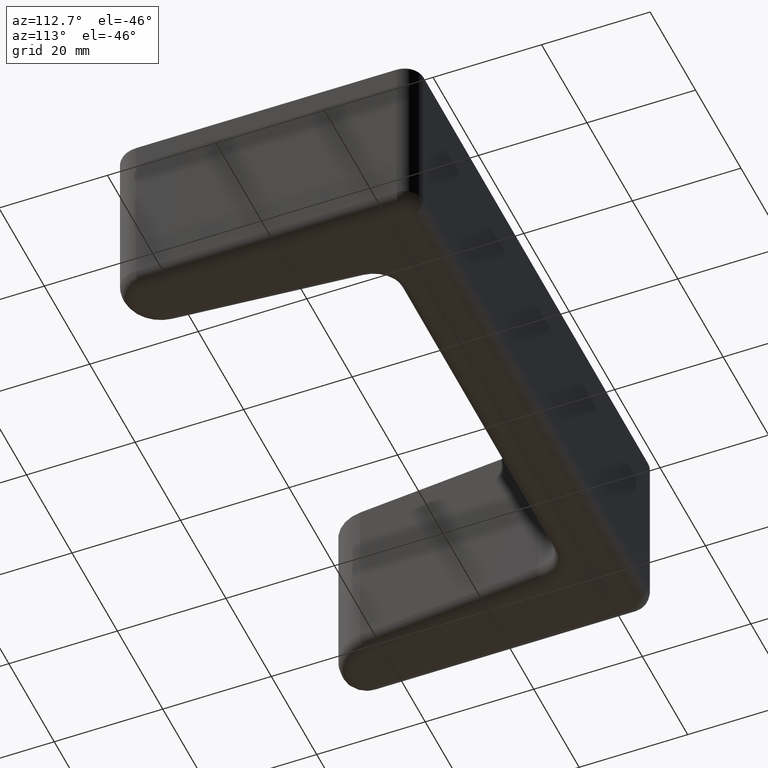
[diagram: clean part render]
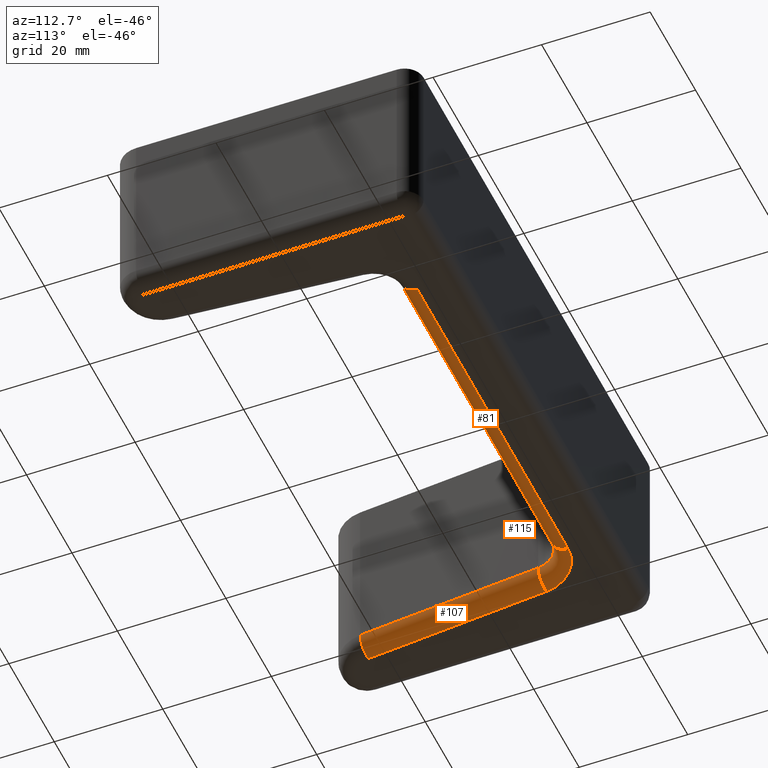
[diagram: same view with one multi-face feature highlighted, each face labeled with its STEP entity id]
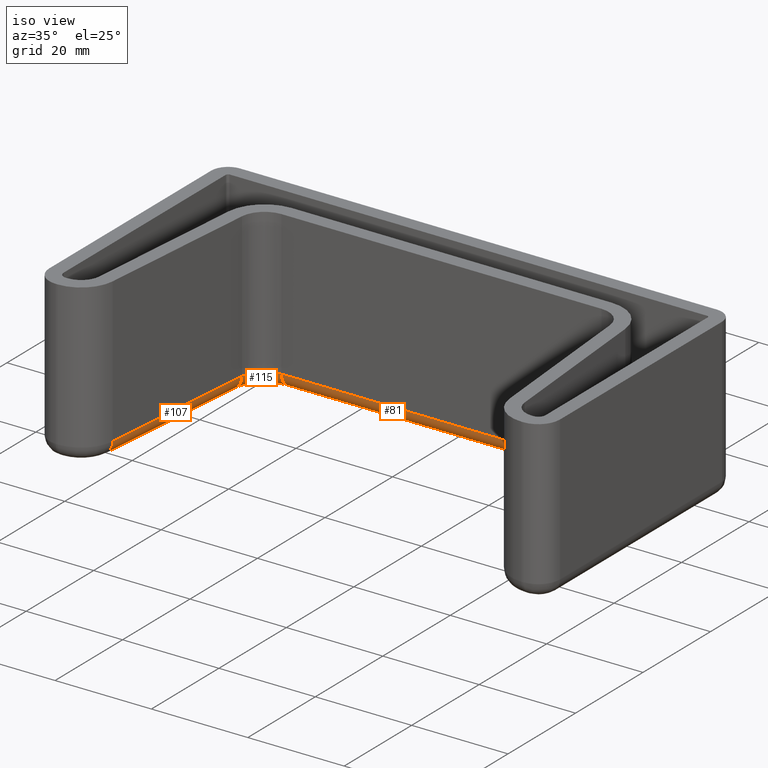
[diagram: same view with one multi-face feature highlighted, each face labeled with its STEP entity id]
A machine part, auxiliary view. The highlighted faces form ONE feature: a constant-radius fillet chain: 3 tangent blend faces with common blend radius 3 mm. The faces share edges in the B-rep.
A second angle (iso view) of the same feature is appended — it is thin or edge-on in the first view.
Their STEP definitions:
[1] entity #81 (Cylinder):
#81 = ADVANCED_FACE( '', ( #140 ), #141, .T. );
#140 = FACE_OUTER_BOUND( '', #243, .T. );
#141 = CYLINDRICAL_SURFACE( '', #244, 3.00000000000000 );
#243 = EDGE_LOOP( '', ( #463, #464, #465, #466 ) );
#244 = AXIS2_PLACEMENT_3D( '', #467, #468, #469 );
#463 = ORIENTED_EDGE( '', *, *, #835, .T. );
#464 = ORIENTED_EDGE( '', *, *, #833, .T. );
#465 = ORIENTED_EDGE( '', *, *, #836, .F. );
#466 = ORIENTED_EDGE( '', *, *, #837, .T. );
#467 = CARTESIAN_POINT( '', ( 12.5000000000000, -2.50000000000002, -29.9998116069360 ) );
#468 = DIRECTION( '', ( 1.00000000000000, -1.50710429073922E-015, -9.56537108098822E-017 ) );
#469 = DIRECTION( '', ( -1.13332105149637E-015, -0.707106781186548, -0.707106781186547 ) );
#833 = EDGE_CURVE( '', #996, #1000, #1001, .T. );
#835 = EDGE_CURVE( '', #1003, #996, #1004, .T. );
#836 = EDGE_CURVE( '', #1005, #1000, #1006, .T. );
#837 = EDGE_CURVE( '', #1005, #1003, #1007, .T. );
#996 = VERTEX_POINT( '', #1226 );
#1000 = VERTEX_POINT( '', #1232 );
#1001 = LINE( '', #1233, #1234 );
#1003 = VERTEX_POINT( '', #1237 );
#1004 = CIRCLE( '', #1238, 3.00000000000000 );
#1005 = VERTEX_POINT( '', #1239 );
#1006 = CIRCLE( '', #1240, 3.00000000000000 );
#1007 = LINE( '', #1241, #1242 );
#1226 = CARTESIAN_POINT( '', ( 33.2013506078606, -5.50000000000005, -29.9998116069360 ) );
#1232 = CARTESIAN_POINT( '', ( -33.2013506078606, -5.49999999999995, -29.9998116069360 ) );
#1233 = CARTESIAN_POINT( '', ( 12.5000000000000, -5.50000000000002, -29.9998116069360 ) );
#1234 = VECTOR( '', #1487, 1000.00000000000 );
#1237 = CARTESIAN_POINT( '', ( 33.2013506078606, -2.50000000000005, -32.9998116069360 ) );
#1238 = AXIS2_PLACEMENT_3D( '', #1489, #1490, #1491 );
#1239 = CARTESIAN_POINT( '', ( -33.2013506078606, -2.49999999999995, -32.9998116069360 ) );
#1240 = AXIS2_PLACEMENT_3D( '', #1492, #1493, #1494 );
#1241 = CARTESIAN_POINT( '', ( 12.5000000000000, -2.50000000000002, -32.9998116069360 ) );
#1242 = VECTOR( '', #1495, 1000.00000000000 );
#1487 = DIRECTION( '', ( -1.00000000000000, 1.53391121531158E-015, 1.22460635382238E-016 ) );
#1489 = CARTESIAN_POINT( '', ( 33.2013506078606, -2.50000000000005, -29.9998116069360 ) );
#1490 = DIRECTION( '', ( -1.00000000000000, 2.96059473233375E-015, 1.22460635382237E-016 ) );
#1491 = DIRECTION( '', ( -1.22460635382238E-016, -1.22460635382238E-016, -1.00000000000000 ) );
#1492 = CARTESIAN_POINT( '', ( -33.2013506078606, -2.49999999999995, -29.9998116069360 ) );
#1493 = DIRECTION( '', ( -1.00000000000000, 1.48029736616688E-015, 1.22460635382238E-016 ) );
#1494 = DIRECTION( '', ( -1.22460635382238E-016, -1.22460635382238E-016, -1.00000000000000 ) );
#1495 = DIRECTION( '', ( 1.00000000000000, -1.53391121531158E-015, -1.22460635382238E-016 ) );
[2] entity #115 (Torus):
#115 = ADVANCED_FACE( '', ( #208 ), #209, .T. );
#208 = FACE_OUTER_BOUND( '', #371, .T. );
#209 = TOROIDAL_SURFACE( '', #372, 8.00000000000000, 3.00000000000000 );
#371 = EDGE_LOOP( '', ( #701, #702, #703, #704 ) );
#372 = AXIS2_PLACEMENT_3D( '', #705, #706, #707 );
#701 = ORIENTED_EDGE( '', *, *, #836, .T. );
#702 = ORIENTED_EDGE( '', *, *, #892, .T. );
#703 = ORIENTED_EDGE( '', *, *, #897, .F. );
#704 = ORIENTED_EDGE( '', *, *, #911, .T. );
#705 = CARTESIAN_POINT( '', ( -33.2013506078606, -10.5000000000000, -29.9998116069360 ) );
#706 = DIRECTION( '', ( -1.22460635382238E-016, -1.22460635382238E-016, -1.00000000000000 ) );
#707 = DIRECTION( '', ( 1.00000000000000, -1.49966072182214E-032, -1.22460635382238E-016 ) );
#836 = EDGE_CURVE( '', #1005, #1000, #1006, .T. );
#892 = EDGE_CURVE( '', #1000, #1091, #1092, .T. );
#897 = EDGE_CURVE( '', #1099, #1091, #1100, .T. );
#911 = EDGE_CURVE( '', #1099, #1005, #1118, .T. );
#1000 = VERTEX_POINT( '', #1232 );
#1005 = VERTEX_POINT( '', #1239 );
#1006 = CIRCLE( '', #1240, 3.00000000000000 );
#1091 = VERTEX_POINT( '', #1357 );
#1092 = CIRCLE( '', #1358, 5.00000000000000 );
#1099 = VERTEX_POINT( '', #1366 );
#1100 = CIRCLE( '', #1367, 3.00000000000000 );
#1118 = CIRCLE( '', #1394, 8.00000000000000 );
#1232 = CARTESIAN_POINT( '', ( -33.2013506078606, -5.49999999999995, -29.9998116069360 ) );
#1239 = CARTESIAN_POINT( '', ( -33.2013506078606, -2.49999999999995, -32.9998116069360 ) );
#1240 = AXIS2_PLACEMENT_3D( '', #1492, #1493, #1494 );
#1357 = CARTESIAN_POINT( '', ( -38.1823240983193, -10.0642212862617, -29.9998116069360 ) );
#1358 = AXIS2_PLACEMENT_3D( '', #1596, #1597, #1598 );
#1366 = CARTESIAN_POINT( '', ( -41.1709081925946, -9.80275405801870, -32.9998116069360 ) );
#1367 = AXIS2_PLACEMENT_3D( '', #1609, #1610, #1611 );
#1394 = AXIS2_PLACEMENT_3D( '', #1633, #1634, #1635 );
#1492 = CARTESIAN_POINT( '', ( -33.2013506078606, -2.49999999999995, -29.9998116069360 ) );
#1493 = DIRECTION( '', ( -1.00000000000000, 1.48029736616688E-015, 1.22460635382238E-016 ) );
#1494 = DIRECTION( '', ( -1.22460635382238E-016, -1.22460635382238E-016, -1.00000000000000 ) );
#1596 = CARTESIAN_POINT( '', ( -33.2013506078606, -10.5000000000000, -29.9998116069360 ) );
#1597 = DIRECTION( '', ( 1.22460635382238E-016, 1.22460635382238E-016, 1.00000000000000 ) );
#1598 = DIRECTION( '', ( -0.675590207615660, 0.737277336810125, -7.55424503606035E-018 ) );
#1609 = CARTESIAN_POINT( '', ( -41.1709081925946, -9.80275405801870, -29.9998116069360 ) );
#1610 = DIRECTION( '', ( -0.0871557427476580, -0.996194698091746, 1.32667783326821E-016 ) );
#1611 = DIRECTION( '', ( -1.22460635382238E-016, -1.22460635382238E-016, -1.00000000000000 ) );
#1633 = CARTESIAN_POINT( '', ( -33.2013506078606, -10.5000000000000, -32.9998116069360 ) );
#1634 = DIRECTION( '', ( -1.22460635382238E-016, -1.22460635382238E-016, -1.00000000000000 ) );
#1635 = DIRECTION( '', ( -0.675590207615660, 0.737277336810125, -7.55424503606035E-018 ) );
[3] entity #107 (Cylinder):
#107 = ADVANCED_FACE( '', ( #192 ), #193, .T. );
#192 = FACE_OUTER_BOUND( '', #355, .T. );
#193 = CYLINDRICAL_SURFACE( '', #356, 3.00000000000000 );
#355 = EDGE_LOOP( '', ( #645, #646, #647, #648 ) );
#356 = AXIS2_PLACEMENT_3D( '', #649, #650, #651 );
#645 = ORIENTED_EDGE( '', *, *, #897, .T. );
#646 = ORIENTED_EDGE( '', *, *, #898, .T. );
#647 = ORIENTED_EDGE( '', *, *, #894, .F. );
#648 = ORIENTED_EDGE( '', *, *, #899, .T. );
#649 = CARTESIAN_POINT( '', ( -41.1513463059337, -9.57916067034370, -29.9998116069360 ) );
#650 = DIRECTION( '', ( 0.0871557427476584, 0.996194698091746, -1.11022302462516E-016 ) );
#651 = DIRECTION( '', ( 0.704416026402759, -0.0616284167162196, -0.707106781186547 ) );
#894 = EDGE_CURVE( '', #1094, #1040, #1095, .T. );
#897 = EDGE_CURVE( '', #1099, #1091, #1100, .T. );
#898 = EDGE_CURVE( '', #1091, #1040, #1101, .T. );
#899 = EDGE_CURVE( '', #1094, #1099, #1102, .T. );
#1040 = VERTEX_POINT( '', #1290 );
#1091 = VERTEX_POINT( '', #1357 );
#1094 = VERTEX_POINT( '', #1361 );
#1095 = CIRCLE( '', #1362, 3.00000000000000 );
#1099 = VERTEX_POINT( '', #1366 );
#1100 = CIRCLE( '', #1367, 3.00000000000000 );
#1101 = LINE( '', #1368, #1369 );
#1102 = LINE( '', #1370, #1371 );
#1290 = CARTESIAN_POINT( '', ( -41.1609516680941, -44.1100901992336, -29.9998116069360 ) );
#1357 = CARTESIAN_POINT( '', ( -38.1823240983193, -10.0642212862617, -29.9998116069360 ) );
#1361 = CARTESIAN_POINT( '', ( -44.1495357623693, -43.8486229709906, -32.9998116069360 ) );
#1362 = AXIS2_PLACEMENT_3D( '', #1600, #1601, #1602 );
#1366 = CARTESIAN_POINT( '', ( -41.1709081925946, -9.80275405801870, -32.9998116069360 ) );
#1367 = AXIS2_PLACEMENT_3D( '', #1609, #1610, #1611 );
#1368 = CARTESIAN_POINT( '', ( -38.1627622116584, -9.84062789858670, -29.9998116069360 ) );
#1369 = VECTOR( '', #1612, 1000.00000000000 );
#1370 = CARTESIAN_POINT( '', ( -41.1513463059337, -9.57916067034370, -32.9998116069360 ) );
#1371 = VECTOR( '', #1613, 1000.00000000000 );
#1600 = CARTESIAN_POINT( '', ( -44.1495357623693, -43.8486229709906, -29.9998116069360 ) );
#1601 = DIRECTION( '', ( -0.0871557427476566, -0.996194698091746, 1.32667783326821E-016 ) );
#1602 = DIRECTION( '', ( -1.22460635382238E-016, -1.22460635382238E-016, -1.00000000000000 ) );
#1609 = CARTESIAN_POINT( '', ( -41.1709081925946, -9.80275405801870, -29.9998116069360 ) );
#1610 = DIRECTION( '', ( -0.0871557427476580, -0.996194698091746, 1.32667783326821E-016 ) );
#1611 = DIRECTION( '', ( -1.22460635382238E-016, -1.22460635382238E-016, -1.00000000000000 ) );
#1612 = DIRECTION( '', ( -0.0871557427476584, -0.996194698091746, 1.32667783326821E-016 ) );
#1613 = DIRECTION( '', ( 0.0871557427476584, 0.996194698091746, -1.32667783326821E-016 ) );